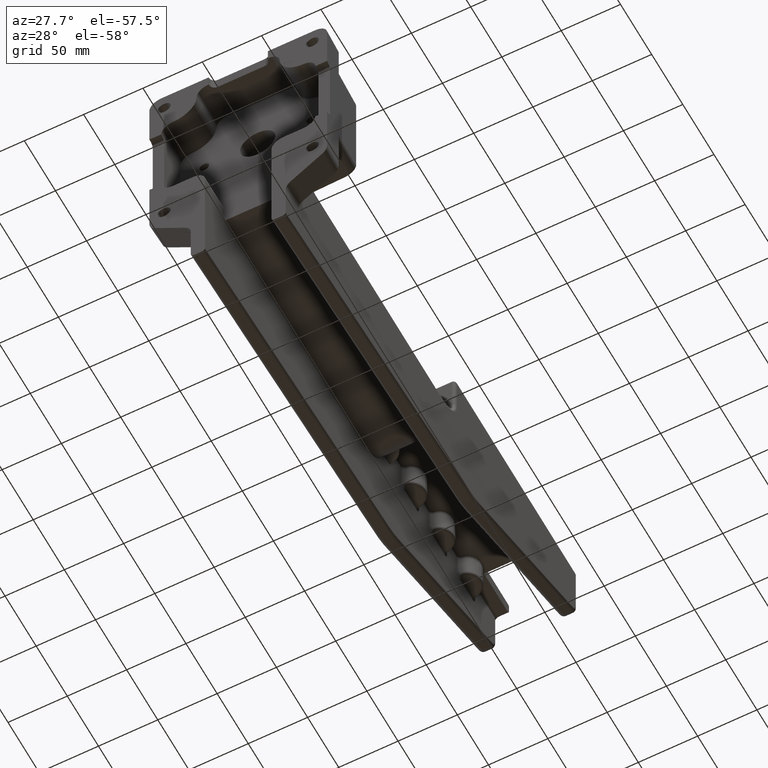
[diagram: clean part render]
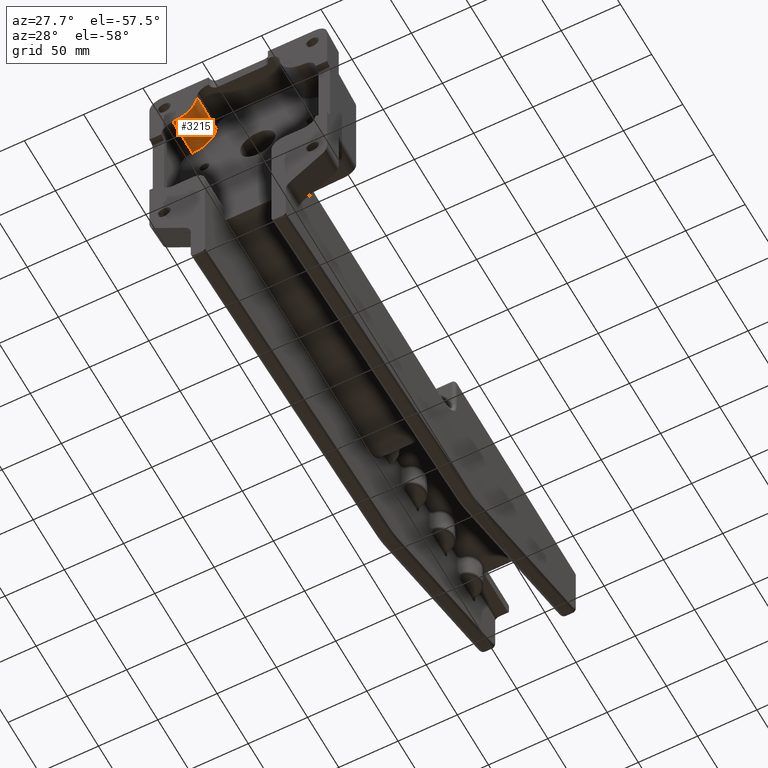
[diagram: same view with one face highlighted and labeled with its STEP entity id]
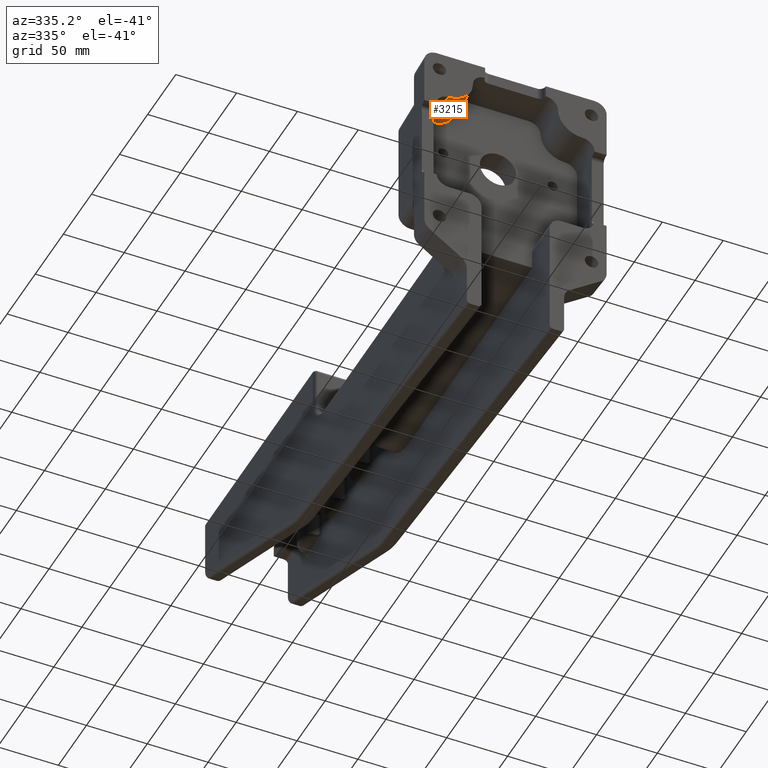
[diagram: same view with one face highlighted and labeled with its STEP entity id]
A machine part, auxiliary view. The second image highlights one B-rep face of the part: STEP entity #3215.
A second angle (auxiliary view) of the same face is appended — the face is thin or edge-on in the first view.
In plain terms, the highlighted cylindrical surface (edge-blend (fillet) strip) has radius 20 mm, axis along (-0, -1, -0).
Its self-contained STEP definition (entity closure, byte-faithful):
#38 = DIRECTION ( 'NONE',  ( -0.0000000000000000000, -1.000000000000000000, -1.176083712526650200E-016 ) ) ;
#554 = LINE ( 'NONE', #6273, #8553 ) ;
#953 = DIRECTION ( 'NONE',  ( 0.0000000000000000000, -2.818925648462305100E-016, -1.000000000000000000 ) ) ;
#1017 = DIRECTION ( 'NONE',  ( -0.0000000000000000000, -1.000000000000000000, -1.176083712526650200E-016 ) ) ;
#1514 = CARTESIAN_POINT ( 'NONE',  ( -34.99999999999967300, 2.999999999999995600, -19.99999999999990100 ) ) ;
#2512 = ORIENTED_EDGE ( 'NONE', *, *, #10850, .T. ) ;
#2732 = AXIS2_PLACEMENT_3D ( 'NONE', #3064, #11433, #10421 ) ;
#2908 = LINE ( 'NONE', #3039, #10585 ) ;
#2969 = CYLINDRICAL_SURFACE ( 'NONE', #2732, 20.00000000000005000 ) ;
#3039 = CARTESIAN_POINT ( 'NONE',  ( -34.99999999999968700, 34.00000000000000000, -19.99999999999990100 ) ) ;
#3064 = CARTESIAN_POINT ( 'NONE',  ( -54.99999999999971600, 34.00000000000000000, -19.99999999999990400 ) ) ;
#3073 = CARTESIAN_POINT ( 'NONE',  ( -54.99999999999971600, 34.00000000000000000, -19.99999999999990400 ) ) ;
#3197 = VERTEX_POINT ( 'NONE', #13015 ) ;
#3215 = ADVANCED_FACE ( 'NONE', ( #9517 ), #2969, .T. ) ;
#3223 = EDGE_CURVE ( 'NONE', #4964, #3197, #554, .T. ) ;
#3891 = AXIS2_PLACEMENT_3D ( 'NONE', #3073, #10386, #4104 ) ;
#4104 = DIRECTION ( 'NONE',  ( 0.0000000000000000000, 0.0000000000000000000, -1.000000000000000000 ) ) ;
#4964 = VERTEX_POINT ( 'NONE', #10536 ) ;
#5117 = CARTESIAN_POINT ( 'NONE',  ( -34.99999999999968700, 34.00000000000000000, -19.99999999999990100 ) ) ;
#6273 = CARTESIAN_POINT ( 'NONE',  ( -54.99999999999987200, 34.00000000000000700, -39.99999999999995700 ) ) ;
#6865 = ORIENTED_EDGE ( 'NONE', *, *, #3223, .F. ) ;
#7108 = AXIS2_PLACEMENT_3D ( 'NONE', #13418, #7202, #953 ) ;
#7202 = DIRECTION ( 'NONE',  ( 0.0000000000000000000, -1.000000000000000000, 2.775557561562851900E-016 ) ) ;
#8553 = VECTOR ( 'NONE', #38, 1000.000000000000000 ) ;
#9129 = VERTEX_POINT ( 'NONE', #1514 ) ;
#9375 = VERTEX_POINT ( 'NONE', #5117 ) ;
#9517 = FACE_OUTER_BOUND ( 'NONE', #11236, .T. ) ;
#9788 = EDGE_CURVE ( 'NONE', #3197, #9129, #12192, .T. ) ;
#10178 = CIRCLE ( 'NONE', #3891, 20.00000000000005000 ) ;
#10386 = DIRECTION ( 'NONE',  ( -0.0000000000000000000, 1.000000000000000000, 1.176083712526650200E-016 ) ) ;
#10421 = DIRECTION ( 'NONE',  ( 0.0000000000000000000, 0.0000000000000000000, -1.000000000000000000 ) ) ;
#10536 = CARTESIAN_POINT ( 'NONE',  ( -54.99999999999987200, 34.00000000000000700, -39.99999999999995700 ) ) ;
#10585 = VECTOR ( 'NONE', #1017, 1000.000000000000000 ) ;
#10850 = EDGE_CURVE ( 'NONE', #9375, #9129, #2908, .T. ) ;
#11236 = EDGE_LOOP ( 'NONE', ( #12317, #6865, #12924, #2512 ) ) ;
#11433 = DIRECTION ( 'NONE',  ( -0.0000000000000000000, -1.000000000000000000, -1.176083712526650200E-016 ) ) ;
#12192 = CIRCLE ( 'NONE', #7108, 20.00000000000004600 ) ;
#12317 = ORIENTED_EDGE ( 'NONE', *, *, #9788, .F. ) ;
#12924 = ORIENTED_EDGE ( 'NONE', *, *, #13444, .F. ) ;
#13015 = CARTESIAN_POINT ( 'NONE',  ( -54.99999999999987200, 2.999999999999988000, -39.99999999999996400 ) ) ;
#13418 = CARTESIAN_POINT ( 'NONE',  ( -54.99999999999971600, 2.999999999999995600, -19.99999999999990800 ) ) ;
#13444 = EDGE_CURVE ( 'NONE', #9375, #4964, #10178, .T. ) ;